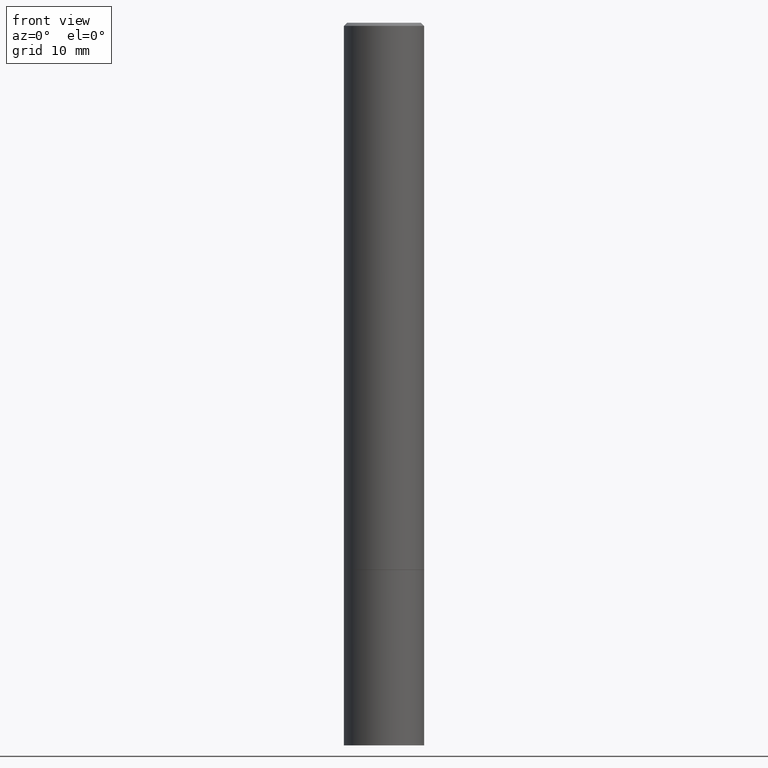
[diagram: clean part render]
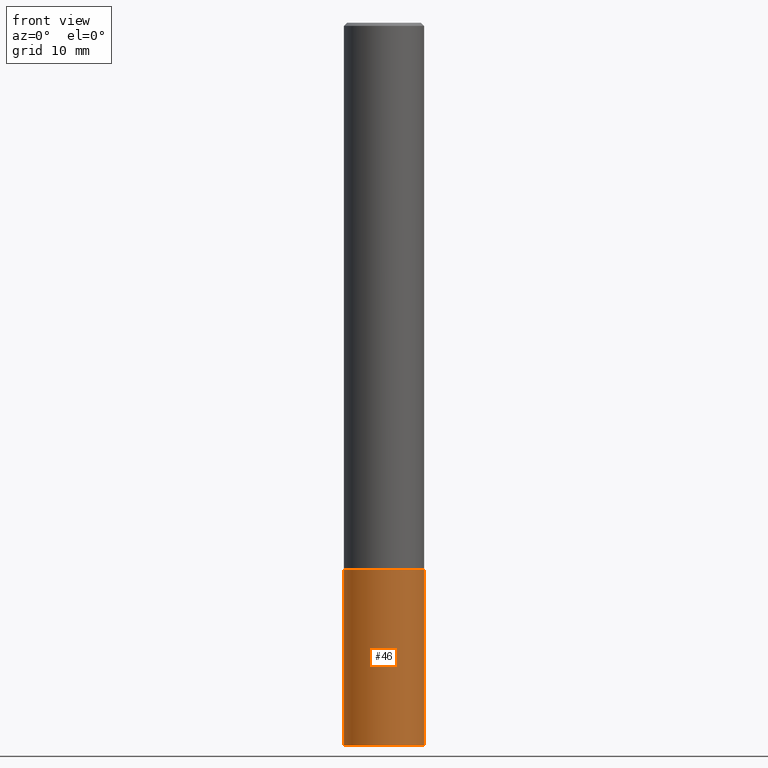
[diagram: same view with one face highlighted and labeled with its STEP entity id]
A machine part, front view. The second image highlights one B-rep face of the part: STEP entity #46.
In plain terms, the highlighted cylindrical surface (partial cylindrical patch) has radius 6.35 mm, axis along (-0, 0, 1).
Its self-contained STEP definition (entity closure, byte-faithful):
#5 = DIRECTION ( 'NONE',  ( -2.445468806185136877E-29, 3.491481338843145188E-15, 1.000000000000000000 ) ) ;
#10 = ORIENTED_EDGE ( 'NONE', *, *, #261, .F. ) ;
#28 = CARTESIAN_POINT ( 'NONE',  ( -0.2500000000000000000, -1.202721463371612651E-14, -4.500000000000000000 ) ) ;
#40 = CARTESIAN_POINT ( 'NONE',  ( 0.000000000000000000, 0.000000000000000000, 0.000000000000000000 ) ) ;
#45 = LINE ( 'NONE', #220, #126 ) ;
#46 = ADVANCED_FACE ( 'NONE', ( #171 ), #296, .T. ) ;
#51 = ORIENTED_EDGE ( 'NONE', *, *, #123, .T. ) ;
#58 = VERTEX_POINT ( 'NONE', #134 ) ;
#61 = ORIENTED_EDGE ( 'NONE', *, *, #229, .F. ) ;
#64 = EDGE_CURVE ( 'NONE', #125, #58, #222, .T. ) ;
#80 = CARTESIAN_POINT ( 'NONE',  ( 0.2500000000000000000, -1.364121759086016216E-14, -3.407000000000000028 ) ) ;
#88 = VERTEX_POINT ( 'NONE', #80 ) ;
#94 = DIRECTION ( 'NONE',  ( -2.445468806185136597E-29, 3.491481338843145583E-15, 1.000000000000000000 ) ) ;
#102 = VECTOR ( 'NONE', #5, 39.37007874015748143 ) ;
#103 = CARTESIAN_POINT ( 'NONE',  ( 1.100460962783311469E-28, -1.571166602479415690E-14, -4.500000000000000000 ) ) ;
#108 = DIRECTION ( 'NONE',  ( -2.445468806185136597E-29, 3.491481338843145583E-15, 1.000000000000000000 ) ) ;
#113 = DIRECTION ( 'NONE',  ( 1.000000000000000000, -6.982962677686262766E-15, 0.000000000000000000 ) ) ;
#123 = EDGE_CURVE ( 'NONE', #58, #88, #45, .T. ) ;
#125 = VERTEX_POINT ( 'NONE', #28 ) ;
#126 = VECTOR ( 'NONE', #304, 39.37007874015748143 ) ;
#129 = CARTESIAN_POINT ( 'NONE',  ( -0.2500000000000000000, 1.776356839400250465E-15, -1.229733772563726445E-29 ) ) ;
#134 = CARTESIAN_POINT ( 'NONE',  ( 0.2500000000000000000, -1.745740669421572357E-14, -4.500000000000000000 ) ) ;
#167 = AXIS2_PLACEMENT_3D ( 'NONE', #259, #318, #113 ) ;
#171 = FACE_OUTER_BOUND ( 'NONE', #359, .T. ) ;
#176 = CIRCLE ( 'NONE', #167, 0.2500000000000000000 ) ;
#179 = CARTESIAN_POINT ( 'NONE',  ( -0.2500000000000000000, -1.202721463371612651E-14, -3.407000000000000028 ) ) ;
#198 = AXIS2_PLACEMENT_3D ( 'NONE', #40, #94, #292 ) ;
#214 = ORIENTED_EDGE ( 'NONE', *, *, #64, .T. ) ;
#220 = CARTESIAN_POINT ( 'NONE',  ( 0.2500000000000000000, -1.745740669421566678E-15, 1.219044193948983948E-29 ) ) ;
#222 = CIRCLE ( 'NONE', #338, 0.2500000000000000000 ) ;
#229 = EDGE_CURVE ( 'NONE', #233, #88, #176, .T. ) ;
#233 = VERTEX_POINT ( 'NONE', #179 ) ;
#259 = CARTESIAN_POINT ( 'NONE',  ( 8.331712222672760735E-29, -1.189547692143859706E-14, -3.407000000000000028 ) ) ;
#261 = EDGE_CURVE ( 'NONE', #125, #233, #269, .T. ) ;
#269 = LINE ( 'NONE', #129, #102 ) ;
#292 = DIRECTION ( 'NONE',  ( 1.000000000000000000, -6.982962677686266711E-15, 4.876176775795935793E-29 ) ) ;
#296 = CYLINDRICAL_SURFACE ( 'NONE', #198, 0.2500000000000000000 ) ;
#301 = DIRECTION ( 'NONE',  ( 1.000000000000000000, -6.982962677686270655E-15, 0.000000000000000000 ) ) ;
#304 = DIRECTION ( 'NONE',  ( -2.445468806185136877E-29, 3.491481338843145188E-15, 1.000000000000000000 ) ) ;
#318 = DIRECTION ( 'NONE',  ( -2.445468806185136597E-29, 3.491481338843145583E-15, 1.000000000000000000 ) ) ;
#338 = AXIS2_PLACEMENT_3D ( 'NONE', #103, #108, #301 ) ;
#359 = EDGE_LOOP ( 'NONE', ( #10, #214, #51, #61 ) ) ;